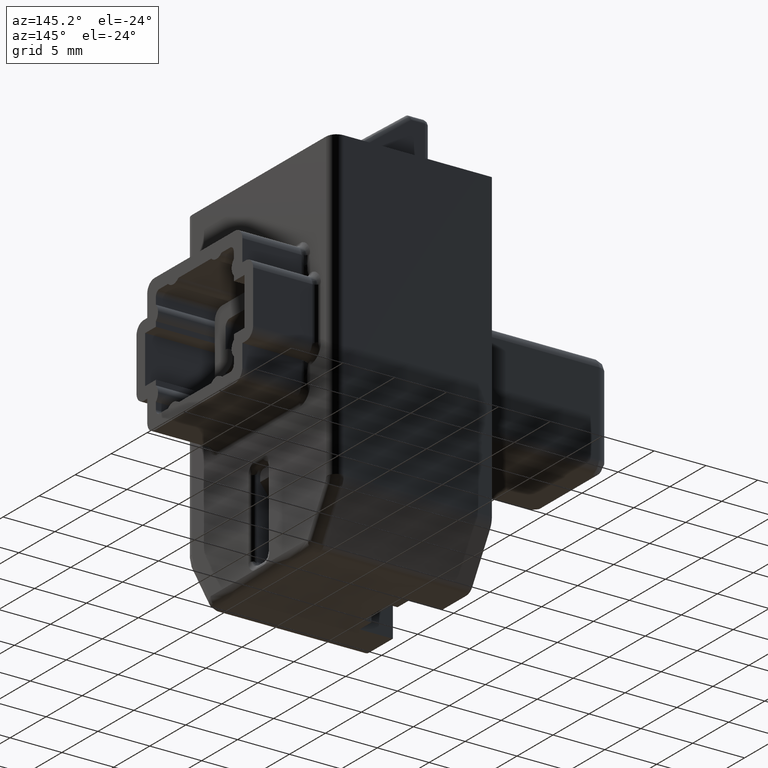
[diagram: clean part render]
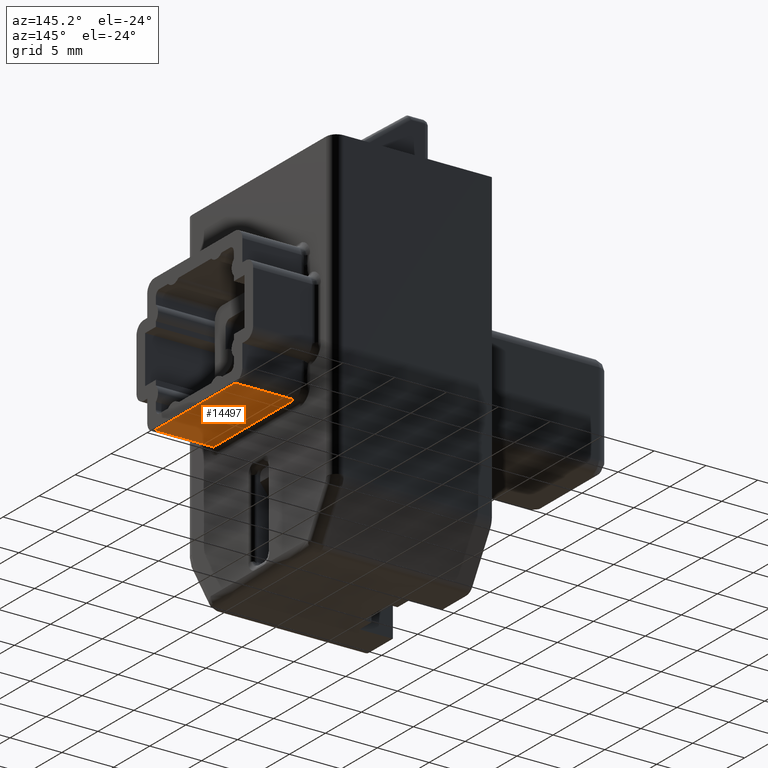
[diagram: same view with one face highlighted and labeled with its STEP entity id]
A machine part, auxiliary view. The second image highlights one B-rep face of the part: STEP entity #14497.
In plain terms, the highlighted face is a freeform B-spline surface patch.
Its self-contained STEP definition (entity closure, byte-faithful):
#11604=CARTESIAN_POINT('',(15.799998999999950,-5.600001000000111,-6.599999999999921));
#11605=VERTEX_POINT('',#11604);
#11729=CARTESIAN_POINT('',(15.799998999999950,5.601416302495380,-6.599998999873640));
#11730=VERTEX_POINT('',#11729);
#11746=CARTESIAN_POINT('',(15.799998999999950,-5.600001000000111,-6.599999999999921));
#11747=CARTESIAN_POINT('',(15.799998999999950,5.601416302495380,-6.599998999873640));
#11748=QUASI_UNIFORM_CURVE('',1,(#11746,#11747),.UNSPECIFIED.,.F.,.U.);
#11749=EDGE_CURVE('',#11605,#11730,#11748,.T.);
#14453=CARTESIAN_POINT('',(21.500000000000000,-5.600001000000111,-6.599999999999921));
#14454=VERTEX_POINT('',#14453);
#14455=CARTESIAN_POINT('',(21.500000000000000,-5.600001000000111,-6.599999999999921));
#14456=CARTESIAN_POINT('',(15.799998999999950,-5.600001000000111,-6.599999999999921));
#14457=QUASI_UNIFORM_CURVE('',1,(#14455,#14456),.UNSPECIFIED.,.F.,.U.);
#14458=EDGE_CURVE('',#14454,#11605,#14457,.T.);
#14476=CARTESIAN_POINT('',(15.515284175127780,-6.159511627379020,-6.600000049956204));
#14477=CARTESIAN_POINT('',(15.515284175127780,6.160926529280387,-6.599998949917383));
#14478=CARTESIAN_POINT('',(21.784715181606028,-6.159511627379020,-6.600000049956204));
#14479=CARTESIAN_POINT('',(21.784715181606028,6.160926529280387,-6.599998949917383));
#14480=B_SPLINE_SURFACE_WITH_KNOTS('',1,1,((#14476,#14478),(#14477,#14479)),.UNSPECIFIED.,.F.,.F.,.U.,(2,2),(2,2),(0.0,12.320438156659460),(0.0,6.269431006478254),.UNSPECIFIED.);
#14481=ORIENTED_EDGE('',*,*,#14458,.T.);
#14482=ORIENTED_EDGE('',*,*,#11749,.T.);
#14483=CARTESIAN_POINT('',(21.500000000000000,5.601416302495380,-6.599998999873640));
#14484=VERTEX_POINT('',#14483);
#14485=CARTESIAN_POINT('',(21.500000000000000,5.601416302495380,-6.599998999873640));
#14486=CARTESIAN_POINT('',(15.799998999999950,5.601416302495380,-6.599998999873640));
#14487=QUASI_UNIFORM_CURVE('',1,(#14485,#14486),.UNSPECIFIED.,.F.,.U.);
#14488=EDGE_CURVE('',#14484,#11730,#14487,.T.);
#14489=ORIENTED_EDGE('',*,*,#14488,.F.);
#14490=CARTESIAN_POINT('',(21.500000000000000,5.601416302495380,-6.599998999873640));
#14491=CARTESIAN_POINT('',(21.500000000000000,-5.600001000000111,-6.599999999999921));
#14492=QUASI_UNIFORM_CURVE('',1,(#14490,#14491),.UNSPECIFIED.,.F.,.U.);
#14493=EDGE_CURVE('',#14484,#14454,#14492,.T.);
#14494=ORIENTED_EDGE('',*,*,#14493,.T.);
#14495=EDGE_LOOP('',(#14481,#14482,#14489,#14494));
#14496=FACE_OUTER_BOUND('',#14495,.T.);
#14497=ADVANCED_FACE('',(#14496),#14480,.T.);